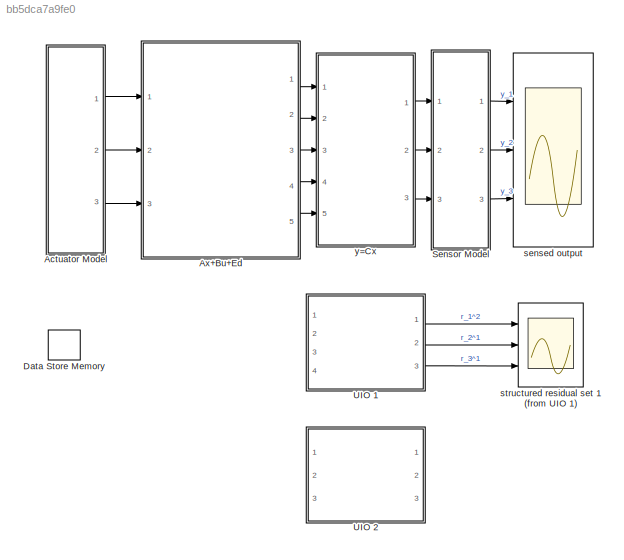
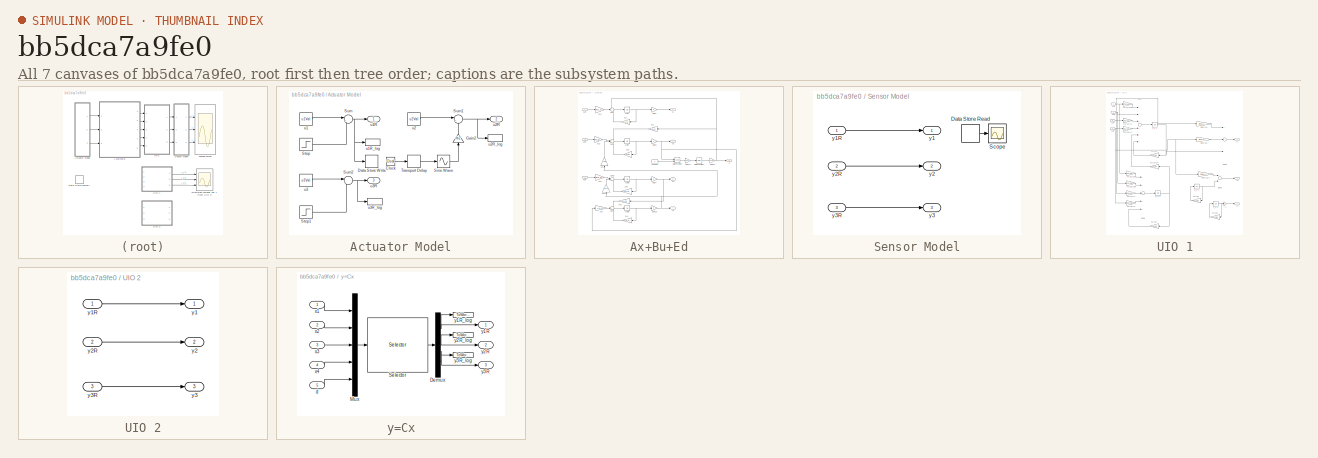
[diagram: thumbnail index - all 7 canvases of the model, root first then tree order]
MODEL slx_bb5dca7a9fe0
KIND model
BLOCK [SubSystem] Actuator Model
  Ports = [0, 3]
  RequestExecContextInheritance = off
BLOCK [Clock] Actuator Model/Clock
BLOCK [DataStoreWrite] Actuator Model/Data Store Write
  DataStoreName = u1R
  Ports = [1]
BLOCK [Gain] Actuator Model/Gain2
  Gain = fa2
  OutDataTypeStr = Inherit: Inherit via internal rule
  ParamDataTypeStr = Inherit: Inherit via internal rule
  SaturateOnIntegerOverflow = off
BLOCK [Sin] Actuator Model/Sine Wave
  Amplitude = 0.2*u2Val
  Frequency = 2
  Ports = [1, 1]
  SampleTime = 0
  TimeSource = Use external signal
BLOCK [Step] Actuator Model/Step
  After = 0.2*u1Val*fa1
  SampleTime = 0
  Time = 4
BLOCK [Step] Actuator Model/Step1
  After = -0.02*u3Val*fa3
  SampleTime = 0
  Time = 4
BLOCK [Sum] Actuator Model/Sum
  IconShape = round
  InputSameDT = off
  Inputs = |++
  OutDataTypeStr = Inherit: Inherit via internal rule
  Ports = [2, 1]
  SaturateOnIntegerOverflow = off
BLOCK [Sum] Actuator Model/Sum1
  IconShape = round
  InputSameDT = off
  Inputs = |++
  OutDataTypeStr = Inherit: Inherit via internal rule
  Ports = [2, 1]
  SaturateOnIntegerOverflow = off
BLOCK [Sum] Actuator Model/Sum2
  IconShape = round
  InputSameDT = off
  Inputs = |++
  OutDataTypeStr = Inherit: Inherit via internal rule
  Ports = [2, 1]
  SaturateOnIntegerOverflow = off
BLOCK [TransportDelay] Actuator Model/Transport Delay
  DelayTime = 4
  Ports = [1, 1]
BLOCK [Constant] Actuator Model/u1
  Value = u1Val
BLOCK [Outport] Actuator Model/u1R
  IconDisplay = Port number
BLOCK [ToWorkspace] Actuator Model/u1R_log
  FixptAsFi = on
  MaxDataPoints = inf
  Ports = [1]
  SampleTime = -1
  Save2DSignal = 2-D array (concatenate along first dimension)
  VariableName = u1R
BLOCK [Constant] Actuator Model/u2
  Value = u2Val
BLOCK [Outport] Actuator Model/u2R
  IconDisplay = Port number
  Port = 2
BLOCK [ToWorkspace] Actuator Model/u2R_log
  FixptAsFi = on
  MaxDataPoints = inf
  Ports = [1]
  SampleTime = -1
  Save2DSignal = 2-D array (concatenate along first dimension)
  VariableName = u2R
BLOCK [Constant] Actuator Model/u3
  Value = u3Val
BLOCK [Outport] Actuator Model/u3R
  IconDisplay = Port number
  Port = 3
BLOCK [ToWorkspace] Actuator Model/u3R_log
  FixptAsFi = on
  MaxDataPoints = inf
  Ports = [1]
  SampleTime = -1
  Save2DSignal = 2-D array (concatenate along first dimension)
  VariableName = u3R
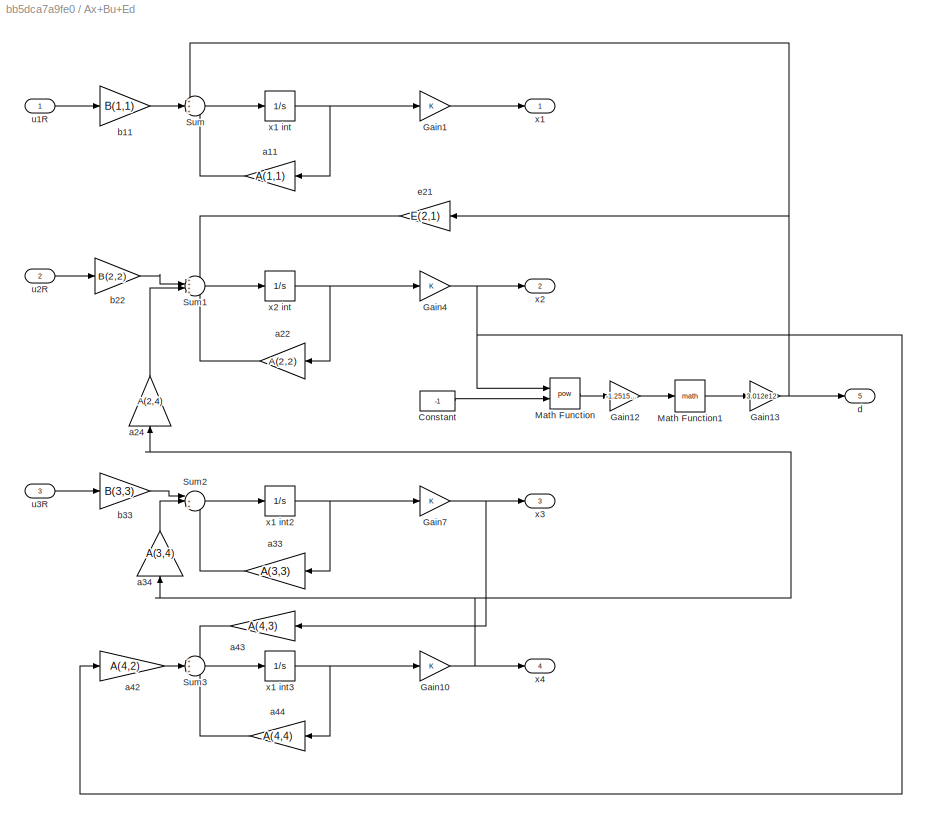
BLOCK [SubSystem] Ax+Bu+Ed
  Ports = [3, 5]
  RequestExecContextInheritance = off
BLOCK [Constant] Ax+Bu+Ed/Constant
  Value = -1
BLOCK [Gain] Ax+Bu+Ed/Gain1
  OutDataTypeStr = Inherit: Inherit via internal rule
  ParamDataTypeStr = Inherit: Inherit via internal rule
  SaturateOnIntegerOverflow = off
BLOCK [Gain] Ax+Bu+Ed/Gain10
  OutDataTypeStr = Inherit: Inherit via internal rule
  ParamDataTypeStr = Inherit: Inherit via internal rule
  SaturateOnIntegerOverflow = off
BLOCK [Gain] Ax+Bu+Ed/Gain12
  Gain = -1.2515e7
  OutDataTypeStr = Inherit: Inherit via internal rule
  ParamDataTypeStr = Inherit: Inherit via internal rule
  SaturateOnIntegerOverflow = off
BLOCK [Gain] Ax+Bu+Ed/Gain13
  Gain = 3.012e12
  OutDataTypeStr = Inherit: Inherit via internal rule
  ParamDataTypeStr = Inherit: Inherit via internal rule
  SaturateOnIntegerOverflow = off
BLOCK [Gain] Ax+Bu+Ed/Gain4
  OutDataTypeStr = Inherit: Inherit via internal rule
  ParamDataTypeStr = Inherit: Inherit via internal rule
  SaturateOnIntegerOverflow = off
BLOCK [Gain] Ax+Bu+Ed/Gain7
  OutDataTypeStr = Inherit: Inherit via internal rule
  ParamDataTypeStr = Inherit: Inherit via internal rule
  SaturateOnIntegerOverflow = off
BLOCK [Math] Ax+Bu+Ed/Math Function
  Operator = pow
  Ports = [2, 1]
BLOCK [Math] Ax+Bu+Ed/Math Function1
  Ports = [1, 1]
BLOCK [Sum] Ax+Bu+Ed/Sum
  IconShape = round
  InputSameDT = off
  Inputs = +++
  OutDataTypeStr = Inherit: Inherit via internal rule
  Ports = [3, 1]
  SaturateOnIntegerOverflow = off
BLOCK [Sum] Ax+Bu+Ed/Sum1
  IconShape = round
  InputSameDT = off
  Inputs = ++++
  OutDataTypeStr = Inherit: Inherit via internal rule
  Ports = [4, 1]
  SaturateOnIntegerOverflow = off
BLOCK [Sum] Ax+Bu+Ed/Sum2
  IconShape = round
  InputSameDT = off
  Inputs = |+++
  OutDataTypeStr = Inherit: Inherit via internal rule
  Ports = [3, 1]
  SaturateOnIntegerOverflow = off
BLOCK [Sum] Ax+Bu+Ed/Sum3
  IconShape = round
  InputSameDT = off
  Inputs = +++
  OutDataTypeStr = Inherit: Inherit via internal rule
  Ports = [3, 1]
  SaturateOnIntegerOverflow = off
BLOCK [Gain] Ax+Bu+Ed/a11
  Gain = A(1,1)
  OutDataTypeStr = Inherit: Inherit via internal rule
  ParamDataTypeStr = Inherit: Inherit via internal rule
  SaturateOnIntegerOverflow = off
BLOCK [Gain] Ax+Bu+Ed/a22
  Gain = A(2,2)
  OutDataTypeStr = Inherit: Inherit via internal rule
  ParamDataTypeStr = Inherit: Inherit via internal rule
  SaturateOnIntegerOverflow = off
BLOCK [Gain] Ax+Bu+Ed/a24
  Gain = A(2,4)
  OutDataTypeStr = Inherit: Inherit via internal rule
  ParamDataTypeStr = Inherit: Inherit via internal rule
  SaturateOnIntegerOverflow = off
BLOCK [Gain] Ax+Bu+Ed/a33
  Gain = A(3,3)
  OutDataTypeStr = Inherit: Inherit via internal rule
  ParamDataTypeStr = Inherit: Inherit via internal rule
  SaturateOnIntegerOverflow = off
BLOCK [Gain] Ax+Bu+Ed/a34
  Gain = A(3,4)
  OutDataTypeStr = Inherit: Inherit via internal rule
  ParamDataTypeStr = Inherit: Inherit via internal rule
  SaturateOnIntegerOverflow = off
BLOCK [Gain] Ax+Bu+Ed/a42
  Gain = A(4,2)
  OutDataTypeStr = Inherit: Inherit via internal rule
  ParamDataTypeStr = Inherit: Inherit via internal rule
  SaturateOnIntegerOverflow = off
BLOCK [Gain] Ax+Bu+Ed/a43
  Gain = A(4,3)
  OutDataTypeStr = Inherit: Inherit via internal rule
  ParamDataTypeStr = Inherit: Inherit via internal rule
  SaturateOnIntegerOverflow = off
BLOCK [Gain] Ax+Bu+Ed/a44
  Gain = A(4,4)
  OutDataTypeStr = Inherit: Inherit via internal rule
  ParamDataTypeStr = Inherit: Inherit via internal rule
  SaturateOnIntegerOverflow = off
BLOCK [Gain] Ax+Bu+Ed/b11
  Gain = B(1,1)
  OutDataTypeStr = Inherit: Inherit via internal rule
  ParamDataTypeStr = Inherit: Inherit via internal rule
  SaturateOnIntegerOverflow = off
BLOCK [Gain] Ax+Bu+Ed/b22
  Gain = B(2,2)
  OutDataTypeStr = Inherit: Inherit via internal rule
  ParamDataTypeStr = Inherit: Inherit via internal rule
  SaturateOnIntegerOverflow = off
BLOCK [Gain] Ax+Bu+Ed/b33
  Gain = B(3,3)
  OutDataTypeStr = Inherit: Inherit via internal rule
  ParamDataTypeStr = Inherit: Inherit via internal rule
  SaturateOnIntegerOverflow = off
BLOCK [Outport] Ax+Bu+Ed/d
  IconDisplay = Port number
  Port = 5
BLOCK [Gain] Ax+Bu+Ed/e21
  Gain = E(2,1)
  OutDataTypeStr = Inherit: Inherit via internal rule
  ParamDataTypeStr = Inherit: Inherit via internal rule
  SaturateOnIntegerOverflow = off
BLOCK [Inport] Ax+Bu+Ed/u1R
  IconDisplay = Port number
BLOCK [Inport] Ax+Bu+Ed/u2R
  IconDisplay = Port number
  Port = 2
BLOCK [Inport] Ax+Bu+Ed/u3R
  IconDisplay = Port number
  Port = 3
BLOCK [Outport] Ax+Bu+Ed/x1
  IconDisplay = Port number
BLOCK [Integrator] Ax+Bu+Ed/x1 int
  InitialCondition = X0(1,1)
  Ports = [1, 1]
BLOCK [Integrator] Ax+Bu+Ed/x1 int2
  InitialCondition = X0(3,1)
  Ports = [1, 1]
BLOCK [Integrator] Ax+Bu+Ed/x1 int3
  InitialCondition = X0(4,1)
  Ports = [1, 1]
BLOCK [Outport] Ax+Bu+Ed/x2
  IconDisplay = Port number
  Port = 2
BLOCK [Integrator] Ax+Bu+Ed/x2 int
  InitialCondition = X0(2,1)
  Ports = [1, 1]
BLOCK [Outport] Ax+Bu+Ed/x3
  IconDisplay = Port number
  Port = 3
BLOCK [Outport] Ax+Bu+Ed/x4
  IconDisplay = Port number
  Port = 4
BLOCK [DataStoreMemory] Data Store Memory
  DataStoreName = u1R
  ReadBeforeWriteMsg = warning
  SignalType = real
  WriteAfterReadMsg = warning
  WriteAfterWriteMsg = warning
BLOCK [SubSystem] Sensor Model
  Ports = [3, 3]
  RequestExecContextInheritance = off
BLOCK [DataStoreRead] Sensor Model/Data Store Read
  DataStoreName = u1R
  Ports = [0, 1]
BLOCK [Scope] Sensor Model/Scope
  DataFormat = StructureWithTime
  Floating = off
  LimitDataPoints = off
  NumInputPorts = 1
  Ports = [1]
  SampleTime = 0
  SaveName = ScopeData2
  ShowLegends = off
BLOCK [Outport] Sensor Model/y1
  IconDisplay = Port number
BLOCK [Inport] Sensor Model/y1R
  IconDisplay = Port number
BLOCK [Outport] Sensor Model/y2
  IconDisplay = Port number
  Port = 2
BLOCK [Inport] Sensor Model/y2R
  IconDisplay = Port number
  Port = 2
BLOCK [Outport] Sensor Model/y3
  IconDisplay = Port number
  Port = 3
BLOCK [Inport] Sensor Model/y3R
  IconDisplay = Port number
  Port = 3
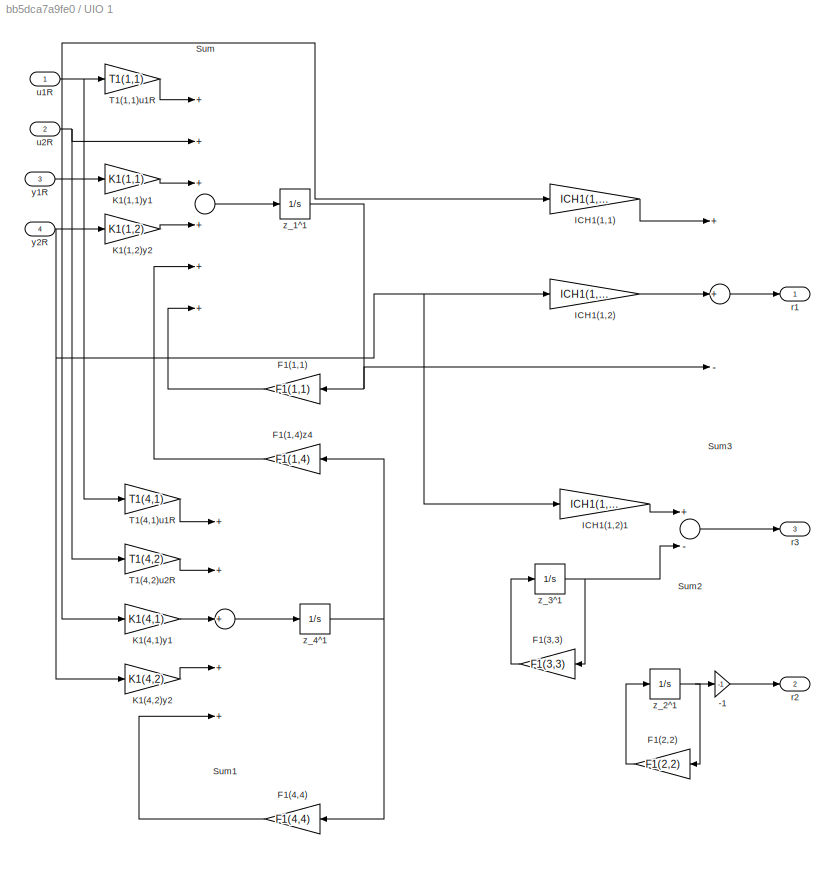
BLOCK [SubSystem] UIO 1
  Commented = on
  Ports = [4, 3]
  RequestExecContextInheritance = off
BLOCK [Gain] UIO 1/-1
  Gain = -1
  OutDataTypeStr = Inherit: Inherit via internal rule
  ParamDataTypeStr = Inherit: Inherit via internal rule
  SaturateOnIntegerOverflow = off
BLOCK [Gain] UIO 1/F1(1,1)
  Gain = F1(1,1)
  OutDataTypeStr = Inherit: Inherit via internal rule
  ParamDataTypeStr = Inherit: Inherit via internal rule
  SaturateOnIntegerOverflow = off
BLOCK [Gain] UIO 1/F1(1,4)z4
  Gain = F1(1,4)
  OutDataTypeStr = Inherit: Inherit via internal rule
  ParamDataTypeStr = Inherit: Inherit via internal rule
  SaturateOnIntegerOverflow = off
BLOCK [Gain] UIO 1/F1(2,2)
  Gain = F1(2,2)
  OutDataTypeStr = Inherit: Inherit via internal rule
  ParamDataTypeStr = Inherit: Inherit via internal rule
  SaturateOnIntegerOverflow = off
BLOCK [Gain] UIO 1/F1(3,3)
  Gain = F1(3,3)
  OutDataTypeStr = Inherit: Inherit via internal rule
  ParamDataTypeStr = Inherit: Inherit via internal rule
  SaturateOnIntegerOverflow = off
BLOCK [Gain] UIO 1/F1(4,4)
  Gain = F1(4,4)
  OutDataTypeStr = Inherit: Inherit via internal rule
  ParamDataTypeStr = Inherit: Inherit via internal rule
  SaturateOnIntegerOverflow = off
BLOCK [Gain] UIO 1/ICH1(1,1)
  Gain = ICH1(1,1)
  OutDataTypeStr = Inherit: Inherit via internal rule
  ParamDataTypeStr = Inherit: Inherit via internal rule
  SaturateOnIntegerOverflow = off
BLOCK [Gain] UIO 1/ICH1(1,2)
  Gain = ICH1(1,2)
  OutDataTypeStr = Inherit: Inherit via internal rule
  ParamDataTypeStr = Inherit: Inherit via internal rule
  SaturateOnIntegerOverflow = off
BLOCK [Gain] UIO 1/ICH1(1,2)1
  Gain = ICH1(1,2)
  OutDataTypeStr = Inherit: Inherit via internal rule
  ParamDataTypeStr = Inherit: Inherit via internal rule
  SaturateOnIntegerOverflow = off
BLOCK [Gain] UIO 1/K1(1,1)y1
  Gain = K1(1,1)
  OutDataTypeStr = Inherit: Inherit via internal rule
  ParamDataTypeStr = Inherit: Inherit via internal rule
  SaturateOnIntegerOverflow = off
BLOCK [Gain] UIO 1/K1(1,2)y2
  Gain = K1(1,2)
  OutDataTypeStr = Inherit: Inherit via internal rule
  ParamDataTypeStr = Inherit: Inherit via internal rule
  SaturateOnIntegerOverflow = off
BLOCK [Gain] UIO 1/K1(4,1)y1
  Gain = K1(4,1)
  OutDataTypeStr = Inherit: Inherit via internal rule
  ParamDataTypeStr = Inherit: Inherit via internal rule
  SaturateOnIntegerOverflow = off
BLOCK [Gain] UIO 1/K1(4,2)y2
  Gain = K1(4,2)
  OutDataTypeStr = Inherit: Inherit via internal rule
  ParamDataTypeStr = Inherit: Inherit via internal rule
  SaturateOnIntegerOverflow = off
BLOCK [Sum] UIO 1/Sum
  InputSameDT = off
  Inputs = ++++++
  OutDataTypeStr = Inherit: Inherit via internal rule
  Ports = [6, 1]
  SaturateOnIntegerOverflow = off
BLOCK [Sum] UIO 1/Sum1
  InputSameDT = off
  Inputs = +++++
  OutDataTypeStr = Inherit: Inherit via internal rule
  Ports = [5, 1]
  SaturateOnIntegerOverflow = off
BLOCK [Sum] UIO 1/Sum2
  InputSameDT = off
  Inputs = +-
  OutDataTypeStr = Inherit: Inherit via internal rule
  Ports = [2, 1]
  SaturateOnIntegerOverflow = off
BLOCK [Sum] UIO 1/Sum3
  InputSameDT = off
  Inputs = ++-
  OutDataTypeStr = Inherit: Inherit via internal rule
  Ports = [3, 1]
  SaturateOnIntegerOverflow = off
BLOCK [Gain] UIO 1/T1(1,1)u1R
  Gain = T1(1,1)
  OutDataTypeStr = Inherit: Inherit via internal rule
  ParamDataTypeStr = Inherit: Inherit via internal rule
  SaturateOnIntegerOverflow = off
BLOCK [Gain] UIO 1/T1(4,1)u1R
  Gain = T1(4,1)
  OutDataTypeStr = Inherit: Inherit via internal rule
  ParamDataTypeStr = Inherit: Inherit via internal rule
  SaturateOnIntegerOverflow = off
BLOCK [Gain] UIO 1/T1(4,2)u2R
  Gain = T1(4,2)
  OutDataTypeStr = Inherit: Inherit via internal rule
  ParamDataTypeStr = Inherit: Inherit via internal rule
  SaturateOnIntegerOverflow = off
BLOCK [Outport] UIO 1/r1
  IconDisplay = Port number
BLOCK [Outport] UIO 1/r2
  IconDisplay = Port number
  Port = 2
BLOCK [Outport] UIO 1/r3 
  IconDisplay = Port number
  Port = 3
BLOCK [Inport] UIO 1/u1R
  IconDisplay = Port number
BLOCK [Inport] UIO 1/u2R
  IconDisplay = Port number
  Port = 2
BLOCK [Inport] UIO 1/y1R
  IconDisplay = Port number
  Port = 3
BLOCK [Inport] UIO 1/y2R
  IconDisplay = Port number
  Port = 4
BLOCK [Integrator] UIO 1/z_1^1
  Ports = [1, 1]
BLOCK [Integrator] UIO 1/z_2^1
  Ports = [1, 1]
BLOCK [Integrator] UIO 1/z_3^1
  Ports = [1, 1]
BLOCK [Integrator] UIO 1/z_4^1
  Ports = [1, 1]
BLOCK [SubSystem] UIO 2
  Commented = on
  Ports = [3, 3]
  RequestExecContextInheritance = off
BLOCK [Outport] UIO 2/y1
  IconDisplay = Port number
BLOCK [Inport] UIO 2/y1R
  IconDisplay = Port number
BLOCK [Outport] UIO 2/y2
  IconDisplay = Port number
  Port = 2
BLOCK [Inport] UIO 2/y2R
  IconDisplay = Port number
  Port = 2
BLOCK [Outport] UIO 2/y3
  IconDisplay = Port number
  Port = 3
BLOCK [Inport] UIO 2/y3R
  IconDisplay = Port number
  Port = 3
BLOCK [Scope] sensed output
  DataFormat = StructureWithTime
  Floating = off
  LimitDataPoints = off
  NumInputPorts = 3
  Ports = [3]
  SampleTime = 0
  ShowLegends = off
  TimeRange = 20
  YMax = 10~540~850
  YMin = 0~380~500
BLOCK [Scope] structured residual set 1 (from UIO 1)
  Commented = on
  DataFormat = StructureWithTime
  Floating = off
  LimitDataPoints = off
  NumInputPorts = 3
  Ports = [3]
  SampleTime = 0
  SaveName = ScopeData1
  ShowLegends = off
  TimeRange = 20
  YMax = 0~1~1
  YMin = -1400~-1~-1
  ZoomMode = yonly
BLOCK [SubSystem] y=Cx
  Ports = [5, 3]
  RequestExecContextInheritance = off
BLOCK [Demux] y=Cx/Demux
  DisplayOption = bar
  Outputs = 3
  Ports = [1, 3]
BLOCK [Mux] y=Cx/Mux
  DisplayOption = bar
  Inputs = 5
  Ports = [5, 1]
BLOCK [Selector] y=Cx/Selector
  Indices = [1 2 3]
  InputPortWidth = 5
  Ports = [1, 1]
BLOCK [Inport] y=Cx/d
  IconDisplay = Port number
  Port = 5
BLOCK [Inport] y=Cx/x1
  IconDisplay = Port number
BLOCK [Inport] y=Cx/x2
  IconDisplay = Port number
  Port = 2
BLOCK [Inport] y=Cx/x3
  IconDisplay = Port number
  Port = 3
BLOCK [Inport] y=Cx/x4
  IconDisplay = Port number
  Port = 4
BLOCK [Outport] y=Cx/y1R
  IconDisplay = Port number
BLOCK [ToWorkspace] y=Cx/y1R_log
  FixptAsFi = on
  MaxDataPoints = inf
  Ports = [1]
  SampleTime = -1
  Save2DSignal = 2-D array (concatenate along first dimension)
  VariableName = y1R
BLOCK [Outport] y=Cx/y2R
  IconDisplay = Port number
  Port = 2
BLOCK [ToWorkspace] y=Cx/y2R_log
  FixptAsFi = on
  MaxDataPoints = inf
  Ports = [1]
  SampleTime = -1
  Save2DSignal = 2-D array (concatenate along first dimension)
  VariableName = y2R
BLOCK [Outport] y=Cx/y3R
  IconDisplay = Port number
  Port = 3
BLOCK [ToWorkspace] y=Cx/y3R_log
  FixptAsFi = on
  MaxDataPoints = inf
  Ports = [1]
  SampleTime = -1
  Save2DSignal = 2-D array (concatenate along first dimension)
  VariableName = y3R
LINE Actuator Model/Clock:1 -> Actuator Model/Transport Delay:1
LINE Actuator Model/Gain2:1 -> Actuator Model/Sum1:2
LINE Actuator Model/Sine Wave:1 -> Actuator Model/Gain2:1
LINE Actuator Model/Step1:1 -> Actuator Model/Sum2:2
LINE Actuator Model/Step:1 -> Actuator Model/Sum:2
NET Actuator Model/Sum1:1 -> Actuator Model/u2R:1, Actuator Model/u2R_log:1
NET Actuator Model/Sum2:1 -> Actuator Model/u3R:1, Actuator Model/u3R_log:1
NET Actuator Model/Sum:1 -> Actuator Model/Data Store Write:1, Actuator Model/u1R:1, Actuator Model/u1R_log:1
LINE Actuator Model/Transport Delay:1 -> Actuator Model/Sine Wave:1
LINE Actuator Model/u1:1 -> Actuator Model/Sum:1
LINE Actuator Model/u2:1 -> Actuator Model/Sum1:1
LINE Actuator Model/u3:1 -> Actuator Model/Sum2:1
LINE Actuator Model:1 -> Ax+Bu+Ed:1
LINE Actuator Model:2 -> Ax+Bu+Ed:2
LINE Actuator Model:3 -> Ax+Bu+Ed:3
LINE Ax+Bu+Ed/Constant:1 -> Ax+Bu+Ed/Math Function:2
NET Ax+Bu+Ed/Gain10:1 -> Ax+Bu+Ed/a24:1, Ax+Bu+Ed/a34:1, Ax+Bu+Ed/x4:1
LINE Ax+Bu+Ed/Gain12:1 -> Ax+Bu+Ed/Math Function1:1
NET Ax+Bu+Ed/Gain13:1 -> Ax+Bu+Ed/Sum:1, Ax+Bu+Ed/d:1, Ax+Bu+Ed/e21:1
LINE Ax+Bu+Ed/Gain1:1 -> Ax+Bu+Ed/x1:1
NET Ax+Bu+Ed/Gain4:1 -> Ax+Bu+Ed/Math Function:1, Ax+Bu+Ed/a42:1, Ax+Bu+Ed/x2:1
NET Ax+Bu+Ed/Gain7:1 -> Ax+Bu+Ed/a43:1, Ax+Bu+Ed/x3:1
LINE Ax+Bu+Ed/Math Function1:1 -> Ax+Bu+Ed/Gain13:1
LINE Ax+Bu+Ed/Math Function:1 -> Ax+Bu+Ed/Gain12:1
LINE Ax+Bu+Ed/Sum1:1 -> Ax+Bu+Ed/x2 int:1
LINE Ax+Bu+Ed/Sum2:1 -> Ax+Bu+Ed/x1 int2:1
LINE Ax+Bu+Ed/Sum3:1 -> Ax+Bu+Ed/x1 int3:1
LINE Ax+Bu+Ed/Sum:1 -> Ax+Bu+Ed/x1 int:1
LINE Ax+Bu+Ed/a11:1 -> Ax+Bu+Ed/Sum:3
LINE Ax+Bu+Ed/a22:1 -> Ax+Bu+Ed/Sum1:4
LINE Ax+Bu+Ed/a24:1 -> Ax+Bu+Ed/Sum1:3
LINE Ax+Bu+Ed/a33:1 -> Ax+Bu+Ed/Sum2:3
LINE Ax+Bu+Ed/a34:1 -> Ax+Bu+Ed/Sum2:2
LINE Ax+Bu+Ed/a42:1 -> Ax+Bu+Ed/Sum3:2
LINE Ax+Bu+Ed/a43:1 -> Ax+Bu+Ed/Sum3:1
LINE Ax+Bu+Ed/a44:1 -> Ax+Bu+Ed/Sum3:3
LINE Ax+Bu+Ed/b11:1 -> Ax+Bu+Ed/Sum:2
LINE Ax+Bu+Ed/b22:1 -> Ax+Bu+Ed/Sum1:2
LINE Ax+Bu+Ed/b33:1 -> Ax+Bu+Ed/Sum2:1
LINE Ax+Bu+Ed/e21:1 -> Ax+Bu+Ed/Sum1:1
LINE Ax+Bu+Ed/u1R:1 -> Ax+Bu+Ed/b11:1
LINE Ax+Bu+Ed/u2R:1 -> Ax+Bu+Ed/b22:1
LINE Ax+Bu+Ed/u3R:1 -> Ax+Bu+Ed/b33:1
NET Ax+Bu+Ed/x1 int2:1 -> Ax+Bu+Ed/Gain7:1, Ax+Bu+Ed/a33:1
NET Ax+Bu+Ed/x1 int3:1 -> Ax+Bu+Ed/Gain10:1, Ax+Bu+Ed/a44:1
NET Ax+Bu+Ed/x1 int:1 -> Ax+Bu+Ed/Gain1:1, Ax+Bu+Ed/a11:1
NET Ax+Bu+Ed/x2 int:1 -> Ax+Bu+Ed/Gain4:1, Ax+Bu+Ed/a22:1
LINE Ax+Bu+Ed:1 -> y=Cx:1
LINE Ax+Bu+Ed:2 -> y=Cx:2
LINE Ax+Bu+Ed:3 -> y=Cx:3
LINE Ax+Bu+Ed:4 -> y=Cx:4
LINE Ax+Bu+Ed:5 -> y=Cx:5
LINE Sensor Model/Data Store Read:1 -> Sensor Model/Scope:1
LINE Sensor Model/y1R:1 -> Sensor Model/y1:1
LINE Sensor Model/y2R:1 -> Sensor Model/y2:1
LINE Sensor Model/y3R:1 -> Sensor Model/y3:1
LINE Sensor Model:1 -> sensed output:1
LINE Sensor Model:2 -> sensed output:2
LINE Sensor Model:3 -> sensed output:3
LINE UIO 1/-1:1 -> UIO 1/r2:1
LINE UIO 1/F1(1,1):1 -> UIO 1/Sum:6
LINE UIO 1/F1(1,4)z4:1 -> UIO 1/Sum:5
LINE UIO 1/F1(2,2):1 -> UIO 1/z_2^1:1
LINE UIO 1/F1(3,3):1 -> UIO 1/z_3^1:1
LINE UIO 1/F1(4,4):1 -> UIO 1/Sum1:5
LINE UIO 1/ICH1(1,1):1 -> UIO 1/Sum3:1
LINE UIO 1/ICH1(1,2)1:1 -> UIO 1/Sum2:1
LINE UIO 1/ICH1(1,2):1 -> UIO 1/Sum3:2
LINE UIO 1/K1(1,1)y1:1 -> UIO 1/Sum:3
LINE UIO 1/K1(1,2)y2:1 -> UIO 1/Sum:4
LINE UIO 1/K1(4,1)y1:1 -> UIO 1/Sum1:3
LINE UIO 1/K1(4,2)y2:1 -> UIO 1/Sum1:4
LINE UIO 1/Sum1:1 -> UIO 1/z_4^1:1
LINE UIO 1/Sum2:1 -> UIO 1/r3 :1
LINE UIO 1/Sum3:1 -> UIO 1/r1:1
LINE UIO 1/Sum:1 -> UIO 1/z_1^1:1
LINE UIO 1/T1(1,1)u1R:1 -> UIO 1/Sum:1
LINE UIO 1/T1(4,1)u1R:1 -> UIO 1/Sum1:1
LINE UIO 1/T1(4,2)u2R:1 -> UIO 1/Sum1:2
NET UIO 1/u1R:1 -> UIO 1/T1(1,1)u1R:1, UIO 1/T1(4,1)u1R:1
NET UIO 1/u2R:1 -> UIO 1/Sum:2, UIO 1/T1(4,2)u2R:1
NET UIO 1/y1R:1 -> UIO 1/ICH1(1,1):1, UIO 1/K1(1,1)y1:1, UIO 1/K1(4,1)y1:1
NET UIO 1/y2R:1 -> UIO 1/ICH1(1,2)1:1, UIO 1/ICH1(1,2):1, UIO 1/K1(1,2)y2:1, UIO 1/K1(4,2)y2:1
NET UIO 1/z_1^1:1 -> UIO 1/F1(1,1):1, UIO 1/Sum3:3
NET UIO 1/z_2^1:1 -> UIO 1/-1:1, UIO 1/F1(2,2):1
NET UIO 1/z_3^1:1 -> UIO 1/F1(3,3):1, UIO 1/Sum2:2
NET UIO 1/z_4^1:1 -> UIO 1/F1(1,4)z4:1, UIO 1/F1(4,4):1
LINE UIO 1:1 -> structured residual set 1 (from UIO 1):1
LINE UIO 1:2 -> structured residual set 1 (from UIO 1):2
LINE UIO 1:3 -> structured residual set 1 (from UIO 1):3
LINE UIO 2/y1R:1 -> UIO 2/y1:1
LINE UIO 2/y2R:1 -> UIO 2/y2:1
LINE UIO 2/y3R:1 -> UIO 2/y3:1
NET y=Cx/Demux:1 -> y=Cx/y1R:1, y=Cx/y1R_log:1
NET y=Cx/Demux:2 -> y=Cx/y2R:1, y=Cx/y2R_log:1
NET y=Cx/Demux:3 -> y=Cx/y3R:1, y=Cx/y3R_log:1
LINE y=Cx/Mux:1 -> y=Cx/Selector:1
LINE y=Cx/Selector:1 -> y=Cx/Demux:1
LINE y=Cx/d:1 -> y=Cx/Mux:5
LINE y=Cx/x1:1 -> y=Cx/Mux:1
LINE y=Cx/x2:1 -> y=Cx/Mux:2
LINE y=Cx/x3:1 -> y=Cx/Mux:3
LINE y=Cx/x4:1 -> y=Cx/Mux:4
LINE y=Cx:1 -> Sensor Model:1
LINE y=Cx:2 -> Sensor Model:2
LINE y=Cx:3 -> Sensor Model:3
note: NET lines group one-source signal fan-out (src -> all destinations, sorted); 1:1 wires keep LINE
